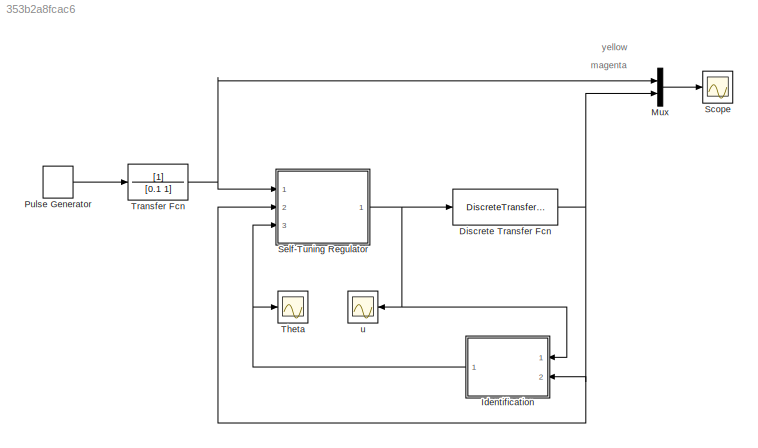
MODEL slx_353b2a8fcac6
KIND model
CONFIG AbsTol = auto
CONFIG FixedStep = 0.005
CONFIG MaxStep = auto
CONFIG MinStep = auto
CONFIG RelTol = 1e-3
CONFIG SampleTimeConstraint = Unconstrained
CONFIG Solver = ode5
CONFIG SolverMode = Auto
CONFIG SolverName = ode5
CONFIG StartTime = 0.0
CONFIG StopTime = 20.0
BLOCK [DiscreteTransferFcn] Discrete Transfer Fcn
  Denominator = [1 -1.805 0.805]
  InputPortMap = u0
  Numerator = [0.02 0.004]
  Ports = [1, 1]
  SampleTime = 0.005
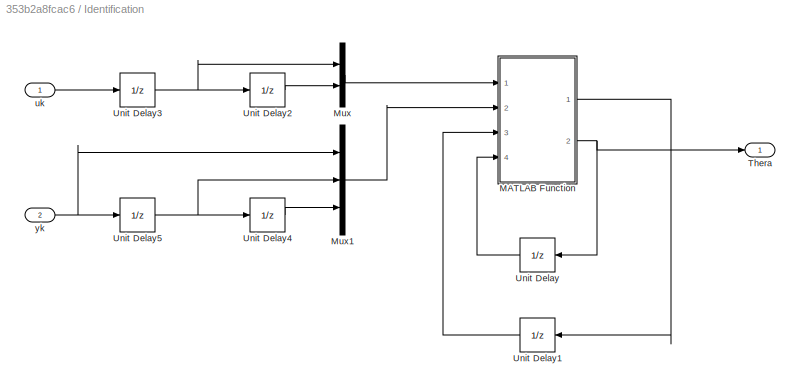
BLOCK [SubSystem] Identification
  Ports = [2, 1]
  RequestExecContextInheritance = off
  Variant = off
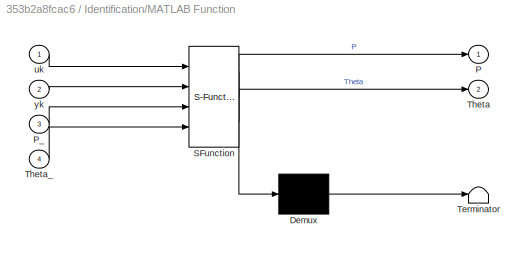
BLOCK [SubSystem] Identification/MATLAB Function
  ErrorFcn = Stateflow.Translate.translate
  PermitHierarchicalResolution = ExplicitOnly
  Ports = [4, 2]
  RequestExecContextInheritance = off
  SFBlockType = MATLAB Function
  TreatAsAtomicUnit = on
  Variant = off
BLOCK [Demux] Identification/MATLAB Function/ Demux 
  Outputs = 1
  Ports = [1, 1]
BLOCK [S-Function] Identification/MATLAB Function/ SFunction 
  EnableBusSupport = on
  FunctionName = sf_sfun
  PortCounts = [4 3]
  Ports = [4, 3]
  SFunctionDeploymentMode = off
  Tag = Stateflow S-Function Motor_pos_str_d 2
BLOCK [Terminator] Identification/MATLAB Function/ Terminator 
BLOCK [Outport] Identification/MATLAB Function/P
  IconDisplay = Port number
BLOCK [Inport] Identification/MATLAB Function/P_
  IconDisplay = Port number
  Port = 3
BLOCK [Outport] Identification/MATLAB Function/Theta
  IconDisplay = Port number
  Port = 2
BLOCK [Inport] Identification/MATLAB Function/Theta_
  IconDisplay = Port number
  Port = 4
BLOCK [Inport] Identification/MATLAB Function/uk
  IconDisplay = Port number
BLOCK [Inport] Identification/MATLAB Function/yk
  IconDisplay = Port number
  Port = 2
BLOCK [Mux] Identification/Mux
  DisplayOption = bar
  Inputs = 2
  Ports = [2, 1]
BLOCK [Mux] Identification/Mux1
  DisplayOption = bar
  Inputs = 3
  Ports = [3, 1]
BLOCK [Outport] Identification/Thera
  IconDisplay = Port number
BLOCK [UnitDelay] Identification/Unit Delay
  InitialCondition = rand(4,1)
  InputProcessing = Elements as channels (sample based)
  SampleTime = -1
BLOCK [UnitDelay] Identification/Unit Delay1
  InitialCondition = 10^5*eye(4)
  InputProcessing = Elements as channels (sample based)
  SampleTime = -1
BLOCK [UnitDelay] Identification/Unit Delay2
  InputProcessing = Elements as channels (sample based)
  SampleTime = -1
BLOCK [UnitDelay] Identification/Unit Delay3
  InputProcessing = Elements as channels (sample based)
  SampleTime = -1
BLOCK [UnitDelay] Identification/Unit Delay4
  InputProcessing = Elements as channels (sample based)
  SampleTime = -1
BLOCK [UnitDelay] Identification/Unit Delay5
  InputProcessing = Elements as channels (sample based)
  SampleTime = -1
BLOCK [Inport] Identification/uk
  IconDisplay = Port number
BLOCK [Inport] Identification/yk
  IconDisplay = Port number
  Port = 2
BLOCK [Mux] Mux
  DisplayOption = bar
  Inputs = 2
  Ports = [2, 1]
BLOCK [DiscretePulseGenerator] Pulse Generator
  Period = 4
  Ports = [0, 1]
  PulseType = Time based
  PulseWidth = 50
BLOCK [Scope] Scope
  Ports = [1]
  ScopeSpecificationString = Simulink.scopes.TimeScopeBlockCfg('CurrentConfiguration', extmgr.ConfigurationSet(extmgr.Configuration('Core','General UI',true,'FigureColor',[1 1 1]),extmgr.Configuration('Core','Source UI',true),extmgr.Configuration('Sources','WiredSimulink',true),extmgr.Configuration('Visuals','Time Domain',true,'SerializedDisplays',{struct('MinYLimReal','-0.13954','MaxYLimReal','1.22793','YLabelReal','','MinYL...<+2274ch>
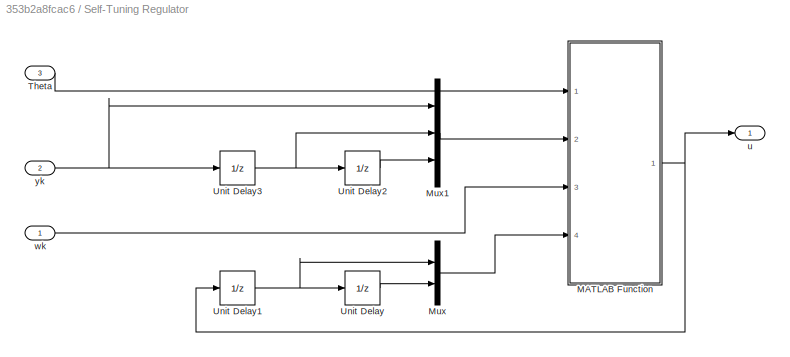
BLOCK [SubSystem] Self-Tuning Regulator
  Ports = [3, 1]
  RequestExecContextInheritance = off
  Variant = off
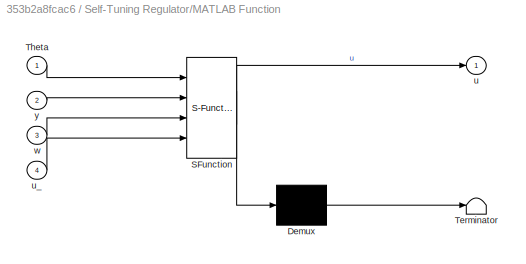
BLOCK [SubSystem] Self-Tuning Regulator/MATLAB Function
  ErrorFcn = Stateflow.Translate.translate
  PermitHierarchicalResolution = ExplicitOnly
  Ports = [4, 1]
  RequestExecContextInheritance = off
  SFBlockType = MATLAB Function
  TreatAsAtomicUnit = on
  Variant = off
BLOCK [Demux] Self-Tuning Regulator/MATLAB Function/ Demux 
  Outputs = 1
  Ports = [1, 1]
BLOCK [S-Function] Self-Tuning Regulator/MATLAB Function/ SFunction 
  EnableBusSupport = on
  FunctionName = sf_sfun
  PortCounts = [4 2]
  Ports = [4, 2]
  SFunctionDeploymentMode = off
  Tag = Stateflow S-Function Motor_pos_str_d 1
BLOCK [Terminator] Self-Tuning Regulator/MATLAB Function/ Terminator 
BLOCK [Inport] Self-Tuning Regulator/MATLAB Function/Theta
  IconDisplay = Port number
BLOCK [Outport] Self-Tuning Regulator/MATLAB Function/u
  IconDisplay = Port number
BLOCK [Inport] Self-Tuning Regulator/MATLAB Function/u_
  IconDisplay = Port number
  Port = 4
BLOCK [Inport] Self-Tuning Regulator/MATLAB Function/w
  IconDisplay = Port number
  Port = 3
BLOCK [Inport] Self-Tuning Regulator/MATLAB Function/y
  IconDisplay = Port number
  Port = 2
BLOCK [Mux] Self-Tuning Regulator/Mux
  DisplayOption = bar
  Inputs = 2
  Ports = [2, 1]
BLOCK [Mux] Self-Tuning Regulator/Mux1
  DisplayOption = bar
  Inputs = 3
  Ports = [3, 1]
BLOCK [Inport] Self-Tuning Regulator/Theta
  IconDisplay = Port number
  Port = 3
BLOCK [UnitDelay] Self-Tuning Regulator/Unit Delay
  InputProcessing = Elements as channels (sample based)
  SampleTime = -1
BLOCK [UnitDelay] Self-Tuning Regulator/Unit Delay1
  InputProcessing = Elements as channels (sample based)
  SampleTime = -1
BLOCK [UnitDelay] Self-Tuning Regulator/Unit Delay2
  InputProcessing = Elements as channels (sample based)
  SampleTime = -1
BLOCK [UnitDelay] Self-Tuning Regulator/Unit Delay3
  InputProcessing = Elements as channels (sample based)
  SampleTime = -1
BLOCK [Outport] Self-Tuning Regulator/u
  IconDisplay = Port number
BLOCK [Inport] Self-Tuning Regulator/wk
  IconDisplay = Port number
BLOCK [Inport] Self-Tuning Regulator/yk
  IconDisplay = Port number
  Port = 2
BLOCK [Scope] Theta
  Ports = [1]
  ScopeSpecificationString = Simulink.scopes.TimeScopeBlockCfg('CurrentConfiguration', extmgr.ConfigurationSet(extmgr.Configuration('Core','General UI',true,'FigureColor',[1 1 1]),extmgr.Configuration('Core','Source UI',true),extmgr.Configuration('Sources','WiredSimulink',true,'DataLoggingVariableName','ScopeData1'),extmgr.Configuration('Visuals','Time Domain',true,'SerializedDisplays',{struct('MinYLimReal','-10','MaxYLimReal...<+2034ch>
BLOCK [TransferFcn] Transfer Fcn
  Denominator = [0.1 1]
BLOCK [Scope] u
  Ports = [1]
  ScopeSpecificationString = Simulink.scopes.TimeScopeBlockCfg('CurrentConfiguration', extmgr.ConfigurationSet(extmgr.Configuration('Core','General UI',true,'FigureColor',[1 1 1]),extmgr.Configuration('Core','Source UI',true),extmgr.Configuration('Sources','WiredSimulink',true,'DataLoggingVariableName','ScopeData2'),extmgr.Configuration('Visuals','Time Domain',true,'SerializedDisplays',{struct('MinYLimReal','-19.17698','MaxYL...<+2222ch>
ANNOTATION (root): magenta
ANNOTATION (root): yellow
NET Discrete Transfer Fcn:1 -> Identification:2, Mux:2, Self-Tuning Regulator:2
LINE Identification/MATLAB Function:1 -> Identification/Unit Delay1:1
NET Identification/MATLAB Function:2 -> Identification/Thera:1, Identification/Unit Delay:1
LINE Identification/Mux1:1 -> Identification/MATLAB Function:2
LINE Identification/Mux:1 -> Identification/MATLAB Function:1
LINE Identification/Unit Delay1:1 -> Identification/MATLAB Function:3
LINE Identification/Unit Delay2:1 -> Identification/Mux:2
NET Identification/Unit Delay3:1 -> Identification/Mux:1, Identification/Unit Delay2:1
LINE Identification/Unit Delay4:1 -> Identification/Mux1:3
NET Identification/Unit Delay5:1 -> Identification/Mux1:2, Identification/Unit Delay4:1
LINE Identification/Unit Delay:1 -> Identification/MATLAB Function:4
LINE Identification/uk:1 -> Identification/Unit Delay3:1
NET Identification/yk:1 -> Identification/Mux1:1, Identification/Unit Delay5:1
NET Identification:1 -> Self-Tuning Regulator:3, Theta:1
LINE Mux:1 -> Scope:1
LINE Pulse Generator:1 -> Transfer Fcn:1
NET Self-Tuning Regulator/MATLAB Function:1 -> Self-Tuning Regulator/Unit Delay1:1, Self-Tuning Regulator/u:1
LINE Self-Tuning Regulator/Mux1:1 -> Self-Tuning Regulator/MATLAB Function:2
LINE Self-Tuning Regulator/Mux:1 -> Self-Tuning Regulator/MATLAB Function:4
LINE Self-Tuning Regulator/Theta:1 -> Self-Tuning Regulator/MATLAB Function:1
NET Self-Tuning Regulator/Unit Delay1:1 -> Self-Tuning Regulator/Mux:1, Self-Tuning Regulator/Unit Delay:1
LINE Self-Tuning Regulator/Unit Delay2:1 -> Self-Tuning Regulator/Mux1:3
NET Self-Tuning Regulator/Unit Delay3:1 -> Self-Tuning Regulator/Mux1:2, Self-Tuning Regulator/Unit Delay2:1
LINE Self-Tuning Regulator/Unit Delay:1 -> Self-Tuning Regulator/Mux:2
LINE Self-Tuning Regulator/wk:1 -> Self-Tuning Regulator/MATLAB Function:3
NET Self-Tuning Regulator/yk:1 -> Self-Tuning Regulator/Mux1:1, Self-Tuning Regulator/Unit Delay3:1
NET Self-Tuning Regulator:1 -> Discrete Transfer Fcn:1, Identification:1, u:1
NET Transfer Fcn:1 -> Mux:1, Self-Tuning Regulator:1
note: NET lines group one-source signal fan-out (src -> all destinations, sorted); 1:1 wires keep LINE
CHART Self-Tuning
Regulator/MATLAB Function states=1 transitions=1
  STATE_LABEL 'eML_blk_kernel()'
  STATE_LABEL 'SCRIPT:\nfunction u = STR_pp1(Theta,y,w,u_)\nalpha = 0.7;\nbeta = 0.7;\n\n% Gan lai thong so de thuan tien viec tinh toan\na1 = Theta(1);\na2 = Theta(2);\nb1 = Theta(3);\nb2 = Theta(4);\n\n% Tinh thong so bo dieu khien\nx1 = -4*alpha+1-a1;\nx2 = 6*alpha^2+beta^2+a1-a2;\nx3 = 2*alpha*(2*alpha^2+beta^2)-a2;\nx4 = alpha^2*(alpha^2+beta^2);\nr0 = (x1+x2-x3+x4)/(b1+b2);\nr1 = (b1+b2)*(a1*b1*b2-a2*b1^2-b2^2);\nr2 = a1*b2...<+392ch>'
CHART Identification/MATLAB Function states=1 transitions=1
  STATE_LABEL 'eML_blk_kernel()'
  STATE_LABEL "SCRIPT:\n% Ham nhan dang thong so doi tuong\nfunction [P,Theta] = Uocluong(uk,yk,P_,Theta_)\n\nlamda = 0.96;\n\nPHI = [-yk(2); -yk(3); uk(1); uk(2)];\ne = yk(1) - PHI'*Theta_;\nL = P_*PHI / (lamda + PHI'*P_*PHI);\nP = 1/lamda*(P_ - P_*PHI*PHI'*P_ /(lamda + PHI'*P_*PHI));\nTheta = Theta_ + L*e;"
